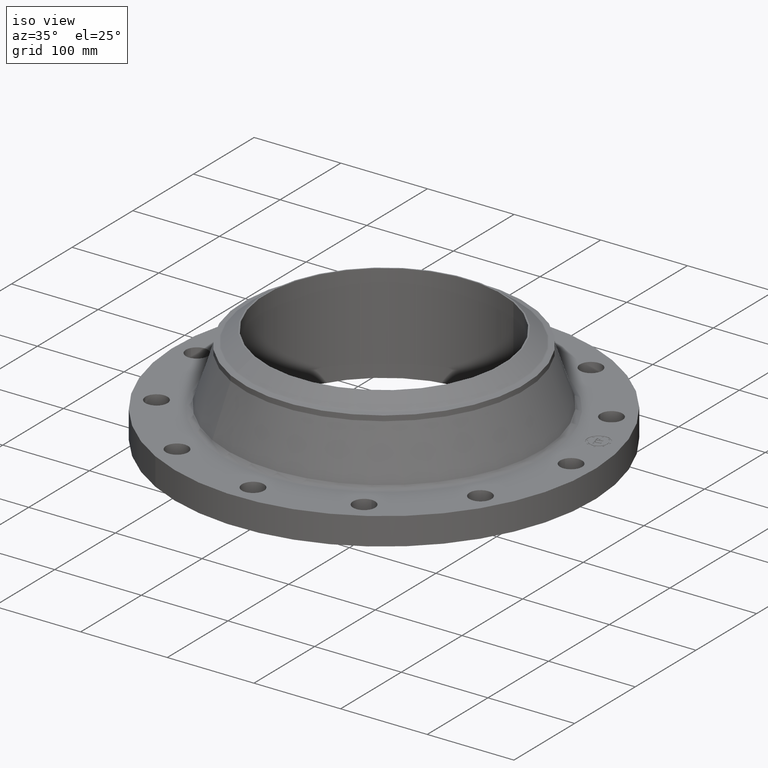
[diagram: clean part render]
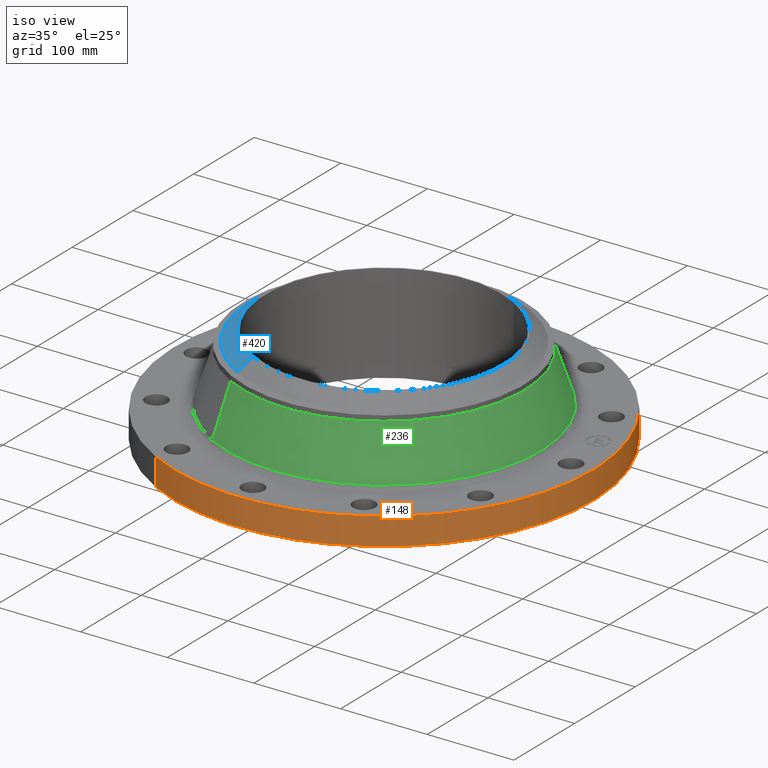
[diagram: same view with three faces highlighted in distinct colors, each labeled with its STEP entity id]
A machine part, iso view with three faces highlighted in distinct colors.
Their STEP definitions:

[orange] entity #148 — the highlighted cylindrical surface (partial cylindrical patch) has radius 241.3 mm, axis along (0, 0, -1).
#95=AXIS2_PLACEMENT_3D('Cylinder Axis2P3D',#92,#93,#94) ;
#134=AXIS2_PLACEMENT_3D('Circle Axis2P3D',#132,#133,$) ;
#139=AXIS2_PLACEMENT_3D('Circle Axis2P3D',#137,#138,$) ;
#92=CARTESIAN_POINT('Axis2P3D Location',(0.,0.,2.30000000001)) ;
#101=CARTESIAN_POINT('Vertex',(-4.55454261676,-8.33703433799,5.59482469102E-016)) ;
#103=CARTESIAN_POINT('Vertex',(4.55454261676,8.33703433799,5.59482469102E-016)) ;
#106=CARTESIAN_POINT('Line Origine',(-4.55454261676,-8.33703433799,0.625000000003)) ;
#110=CARTESIAN_POINT('Vertex',(-4.55454261676,-8.33703433799,1.25000000001)) ;
#117=CARTESIAN_POINT('Vertex',(4.55454261676,8.33703433799,1.25000000001)) ;
#120=CARTESIAN_POINT('Line Origine',(4.55454261676,8.33703433799,0.625000000003)) ;
#132=CARTESIAN_POINT('Axis2P3D Location',(0.,0.,5.59482469102E-016)) ;
#137=CARTESIAN_POINT('Axis2P3D Location',(0.,0.,1.25000000001)) ;
#93=DIRECTION('Axis2P3D Direction',(0.,0.,-0.0393700787402)) ;
#94=DIRECTION('Axis2P3D XDirection',(0.0188750212049,0.0345504945626,0.)) ;
#107=DIRECTION('Vector Direction',(0.,0.,-0.0393700787402)) ;
#121=DIRECTION('Vector Direction',(0.,0.,-0.0393700787402)) ;
#133=DIRECTION('Axis2P3D Direction',(0.,0.,-0.0393700787402)) ;
#138=DIRECTION('Axis2P3D Direction',(0.,0.,-0.0393700787402)) ;
#108=VECTOR('Line Direction',#107,0.0393700787402) ;
#122=VECTOR('Line Direction',#121,0.0393700787402) ;
#143=ORIENTED_EDGE('',*,*,#136,.F.) ;
#144=ORIENTED_EDGE('',*,*,#124,.T.) ;
#145=ORIENTED_EDGE('',*,*,#141,.T.) ;
#146=ORIENTED_EDGE('',*,*,#112,.F.) ;
#148=ADVANCED_FACE('PartBody',(#147),#96,.T.) ;
#135=CIRCLE('generated circle',#134,9.50000000004) ;
#140=CIRCLE('generated circle',#139,9.50000000004) ;
#96=CYLINDRICAL_SURFACE('generated cylinder',#95,9.50000000004) ;
#112=EDGE_CURVE('',#102,#111,#109,.F.) ;
#124=EDGE_CURVE('',#104,#118,#123,.F.) ;
#136=EDGE_CURVE('',#104,#102,#135,.T.) ;
#141=EDGE_CURVE('',#118,#111,#140,.T.) ;
#142=EDGE_LOOP('',(#143,#144,#145,#146)) ;
#147=FACE_OUTER_BOUND('',#142,.T.) ;
#109=LINE('Line',#106,#108) ;
#123=LINE('Line',#120,#122) ;
#102=VERTEX_POINT('',#101) ;
#104=VERTEX_POINT('',#103) ;
#111=VERTEX_POINT('',#110) ;
#118=VERTEX_POINT('',#117) ;

[blue] entity #420 — the highlighted conical surface has half-angle 52.5 deg.
#368=AXIS2_PLACEMENT_3D('Circle Axis2P3D',#366,#367,$) ;
#381=AXIS2_PLACEMENT_3D('Cone Axis2P3D',#378,#379,#380) ;
#411=AXIS2_PLACEMENT_3D('Circle Axis2P3D',#409,#410,$) ;
#344=CARTESIAN_POINT('Vertex',(-2.92484742452,-5.35389729846,3.99108306753)) ;
#351=CARTESIAN_POINT('Vertex',(2.92484742452,5.35389729846,3.99108306753)) ;
#366=CARTESIAN_POINT('Axis2P3D Location',(0.,0.,3.99108306753)) ;
#378=CARTESIAN_POINT('Axis2P3D Location',(0.,0.,4.50000000002)) ;
#383=CARTESIAN_POINT('Line Origine',(-2.76586189534,-5.06287623938,4.24554153377)) ;
#387=CARTESIAN_POINT('Vertex',(-2.60687636617,-4.7718551803,4.50000000002)) ;
#390=CARTESIAN_POINT('Line Origine',(2.76586189534,5.06287623938,4.24554153377)) ;
#394=CARTESIAN_POINT('Vertex',(2.60687636617,4.7718551803,4.50000000002)) ;
#409=CARTESIAN_POINT('Axis2P3D Location',(0.,0.,4.50000000002)) ;
#367=DIRECTION('Axis2P3D Direction',(0.,-0.,-0.0393700787402)) ;
#379=DIRECTION('Axis2P3D Direction',(-0.,-0.,-0.0393700787402)) ;
#380=DIRECTION('Axis2P3D XDirection',(-0.0188750212049,-0.0345504945626,0.)) ;
#384=DIRECTION('Vector Direction',(-0.014974561121,-0.02741075027,-0.023966985394)) ;
#391=DIRECTION('Vector Direction',(0.014974561121,0.02741075027,-0.023966985394)) ;
#410=DIRECTION('Axis2P3D Direction',(0.,-0.,-0.0393700787402)) ;
#385=VECTOR('Line Direction',#384,0.0393700787402) ;
#392=VECTOR('Line Direction',#391,0.0393700787402) ;
#415=ORIENTED_EDGE('',*,*,#396,.T.) ;
#416=ORIENTED_EDGE('',*,*,#370,.F.) ;
#417=ORIENTED_EDGE('',*,*,#389,.F.) ;
#418=ORIENTED_EDGE('',*,*,#413,.T.) ;
#420=ADVANCED_FACE('PartBody',(#419),#382,.T.) ;
#369=CIRCLE('generated circle',#368,6.10073345911) ;
#412=CIRCLE('generated circle',#411,5.43750000002) ;
#382=CONICAL_SURFACE('Cone',#381,5.43750000002,0.916297857297) ;
#370=EDGE_CURVE('',#345,#352,#369,.T.) ;
#389=EDGE_CURVE('',#388,#345,#386,.T.) ;
#396=EDGE_CURVE('',#395,#352,#393,.T.) ;
#413=EDGE_CURVE('',#388,#395,#412,.T.) ;
#414=EDGE_LOOP('',(#415,#416,#417,#418)) ;
#419=FACE_OUTER_BOUND('',#414,.T.) ;
#386=LINE('Line',#383,#385) ;
#393=LINE('Line',#390,#392) ;
#345=VERTEX_POINT('',#344) ;
#352=VERTEX_POINT('',#351) ;
#388=VERTEX_POINT('',#387) ;
#395=VERTEX_POINT('',#394) ;

[green] entity #236 — the highlighted conical surface has half-angle 18.455 deg.
#172=AXIS2_PLACEMENT_3D('Circle Axis2P3D',#170,#171,$) ;
#209=AXIS2_PLACEMENT_3D('Cone Axis2P3D',#206,#207,#208) ;
#220=AXIS2_PLACEMENT_3D('Circle Axis2P3D',#218,#219,$) ;
#167=CARTESIAN_POINT('Vertex',(3.41973293728,6.25977915323,1.42086034474)) ;
#170=CARTESIAN_POINT('Axis2P3D Location',(0.,0.,1.42086034474)) ;
#174=CARTESIAN_POINT('Vertex',(-3.41973293728,-6.25977915323,1.42086034474)) ;
#206=CARTESIAN_POINT('Axis2P3D Location',(0.,0.,3.69216047816)) ;
#211=CARTESIAN_POINT('Line Origine',(3.23803537295,5.92718399265,2.55651041145)) ;
#215=CARTESIAN_POINT('Vertex',(3.05633780861,5.59458883207,3.69216047816)) ;
#218=CARTESIAN_POINT('Axis2P3D Location',(0.,0.,3.69216047816)) ;
#222=CARTESIAN_POINT('Vertex',(-3.05633780861,-5.59458883207,3.69216047816)) ;
#225=CARTESIAN_POINT('Line Origine',(-3.23803537295,-5.92718399265,2.55651041145)) ;
#171=DIRECTION('Axis2P3D Direction',(0.,0.,-0.0393700787402)) ;
#207=DIRECTION('Axis2P3D Direction',(0.,0.,-0.0393700787402)) ;
#208=DIRECTION('Axis2P3D XDirection',(-0.0188750212049,-0.0345504945626,0.)) ;
#212=DIRECTION('Vector Direction',(0.00597505068513,0.0109372569157,-0.0373453916899)) ;
#219=DIRECTION('Axis2P3D Direction',(0.,0.,-0.0393700787402)) ;
#226=DIRECTION('Vector Direction',(-0.00597505068513,-0.0109372569157,-0.0373453916899)) ;
#213=VECTOR('Line Direction',#212,0.0393700787402) ;
#227=VECTOR('Line Direction',#226,0.0393700787402) ;
#231=ORIENTED_EDGE('',*,*,#176,.F.) ;
#232=ORIENTED_EDGE('',*,*,#217,.T.) ;
#233=ORIENTED_EDGE('',*,*,#224,.T.) ;
#234=ORIENTED_EDGE('',*,*,#229,.F.) ;
#236=ADVANCED_FACE('PartBody',(#235),#210,.T.) ;
#173=CIRCLE('generated circle',#172,7.1329803315) ;
#221=CIRCLE('generated circle',#220,6.37500000003) ;
#210=CONICAL_SURFACE('Cone',#209,6.37500000003,0.322099326516) ;
#176=EDGE_CURVE('',#168,#175,#173,.T.) ;
#217=EDGE_CURVE('',#168,#216,#214,.F.) ;
#224=EDGE_CURVE('',#216,#223,#221,.T.) ;
#229=EDGE_CURVE('',#175,#223,#228,.F.) ;
#230=EDGE_LOOP('',(#231,#232,#233,#234)) ;
#235=FACE_OUTER_BOUND('',#230,.T.) ;
#214=LINE('Line',#211,#213) ;
#228=LINE('Line',#225,#227) ;
#168=VERTEX_POINT('',#167) ;
#175=VERTEX_POINT('',#174) ;
#216=VERTEX_POINT('',#215) ;
#223=VERTEX_POINT('',#222) ;